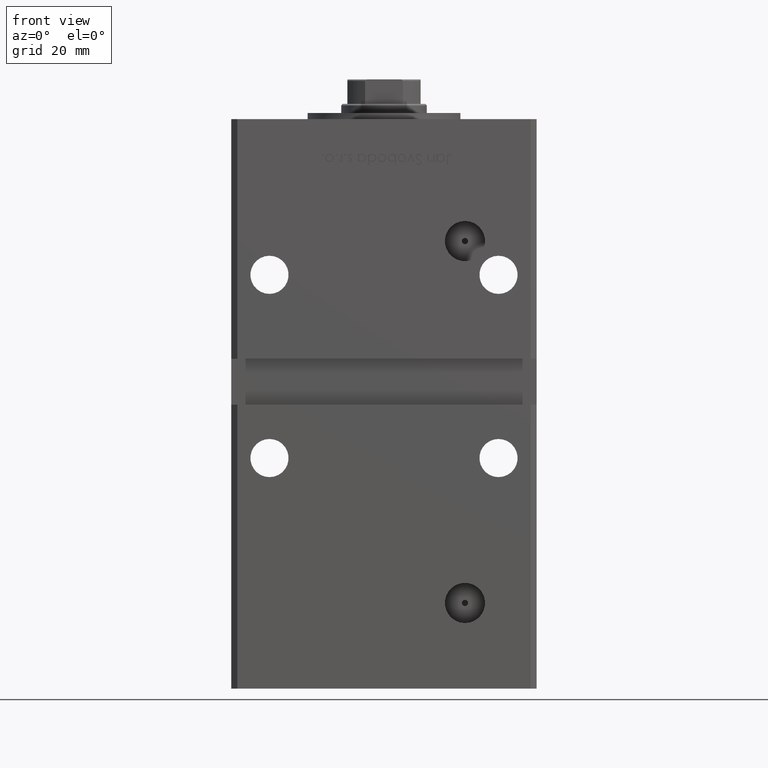
[diagram: clean part render]
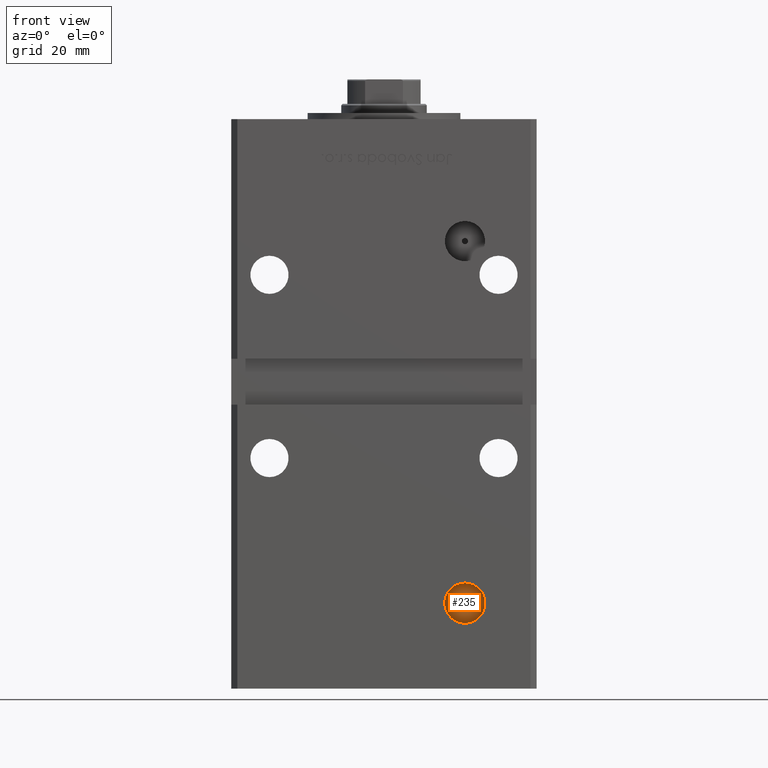
[diagram: same view with one face highlighted and labeled with its STEP entity id]
A machine part, front view. The second image highlights one B-rep face of the part: STEP entity #235.
In plain terms, the highlighted planar face has unit normal (0, -1, 0).
Its self-contained STEP definition (entity closure, byte-faithful):
#235 = ADVANCED_FACE ( 'NONE', ( #13510, #34494 ), #1962, .T. ) ;
#981 = AXIS2_PLACEMENT_3D ( 'NONE', #38852, #34818, #47180 ) ;
#989 = ORIENTED_EDGE ( 'NONE', *, *, #28877, .F. ) ;
#1451 = EDGE_LOOP ( 'NONE', ( #989, #21931 ) ) ;
#1962 = PLANE ( 'NONE',  #37174 ) ;
#2130 = EDGE_CURVE ( 'NONE', #11718, #23992, #13180, .T. ) ;
#2583 = DIRECTION ( 'NONE',  ( 0.000000000000000000, -1.000000000000000000, 0.000000000000000000 ) ) ;
#3861 = CIRCLE ( 'NONE', #12461, 1.000000000000000888 ) ;
#6082 = CARTESIAN_POINT ( 'NONE',  ( 26.49999999999998934, -30.50000000000000000, 9.000000000000007105 ) ) ;
#6428 = EDGE_CURVE ( 'NONE', #23992, #11718, #39641, .T. ) ;
#7588 = ORIENTED_EDGE ( 'NONE', *, *, #2130, .T. ) ;
#7874 = EDGE_LOOP ( 'NONE', ( #7588, #34163 ) ) ;
#10437 = CARTESIAN_POINT ( 'NONE',  ( 26.49999999999998934, -30.50000000000000000, 8.000000000000007105 ) ) ;
#11718 = VERTEX_POINT ( 'NONE', #20630 ) ;
#12461 = AXIS2_PLACEMENT_3D ( 'NONE', #6082, #46414, #42639 ) ;
#13180 = CIRCLE ( 'NONE', #30344, 6.579999999999994742 ) ;
#13510 = FACE_BOUND ( 'NONE', #1451, .T. ) ;
#13525 = CIRCLE ( 'NONE', #43583, 1.000000000000000888 ) ;
#17354 = EDGE_CURVE ( 'NONE', #31826, #26637, #3861, .T. ) ;
#18887 = CARTESIAN_POINT ( 'NONE',  ( 26.49999999999998934, -30.50000000000000000, 15.58000000000000362 ) ) ;
#19234 = CARTESIAN_POINT ( 'NONE',  ( 26.49999999999998934, -30.50000000000000000, 10.00000000000000888 ) ) ;
#20630 = CARTESIAN_POINT ( 'NONE',  ( 26.49999999999998934, -30.50000000000000000, 2.420000000000013252 ) ) ;
#21931 = ORIENTED_EDGE ( 'NONE', *, *, #17354, .F. ) ;
#23992 = VERTEX_POINT ( 'NONE', #18887 ) ;
#26637 = VERTEX_POINT ( 'NONE', #10437 ) ;
#26780 = CARTESIAN_POINT ( 'NONE',  ( 26.49999999999998934, -30.50000000000000000, 9.000000000000007105 ) ) ;
#28877 = EDGE_CURVE ( 'NONE', #26637, #31826, #13525, .T. ) ;
#30183 = DIRECTION ( 'NONE',  ( 0.000000000000000000, -0.000000000000000000, -1.000000000000000000 ) ) ;
#30344 = AXIS2_PLACEMENT_3D ( 'NONE', #41306, #41046, #44555 ) ;
#31826 = VERTEX_POINT ( 'NONE', #19234 ) ;
#34163 = ORIENTED_EDGE ( 'NONE', *, *, #6428, .T. ) ;
#34494 = FACE_OUTER_BOUND ( 'NONE', #7874, .T. ) ;
#34818 = DIRECTION ( 'NONE',  ( 0.000000000000000000, -1.000000000000000000, 0.000000000000000000 ) ) ;
#35020 = CARTESIAN_POINT ( 'NONE',  ( 26.49999999999998934, -30.50000000000000000, 9.000000000000007105 ) ) ;
#37174 = AXIS2_PLACEMENT_3D ( 'NONE', #35020, #46593, #30183 ) ;
#38852 = CARTESIAN_POINT ( 'NONE',  ( 26.49999999999998934, -30.50000000000000000, 9.000000000000007105 ) ) ;
#39641 = CIRCLE ( 'NONE', #981, 6.579999999999994742 ) ;
#41046 = DIRECTION ( 'NONE',  ( 0.000000000000000000, -1.000000000000000000, 0.000000000000000000 ) ) ;
#41306 = CARTESIAN_POINT ( 'NONE',  ( 26.49999999999998934, -30.50000000000000000, 9.000000000000007105 ) ) ;
#42639 = DIRECTION ( 'NONE',  ( 0.000000000000000000, 0.000000000000000000, -1.000000000000000000 ) ) ;
#43183 = DIRECTION ( 'NONE',  ( 0.000000000000000000, 0.000000000000000000, -1.000000000000000000 ) ) ;
#43583 = AXIS2_PLACEMENT_3D ( 'NONE', #26780, #2583, #43183 ) ;
#44555 = DIRECTION ( 'NONE',  ( 0.000000000000000000, 0.000000000000000000, -1.000000000000000000 ) ) ;
#46414 = DIRECTION ( 'NONE',  ( 0.000000000000000000, -1.000000000000000000, 0.000000000000000000 ) ) ;
#46593 = DIRECTION ( 'NONE',  ( 0.000000000000000000, -1.000000000000000000, 0.000000000000000000 ) ) ;
#47180 = DIRECTION ( 'NONE',  ( 0.000000000000000000, 0.000000000000000000, -1.000000000000000000 ) ) ;